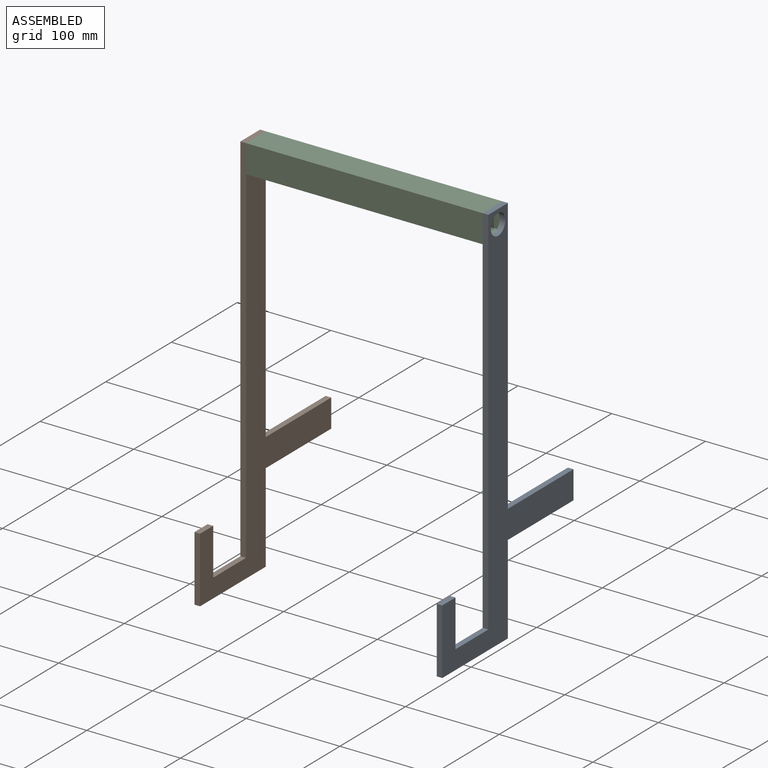
[diagram: assembled view]
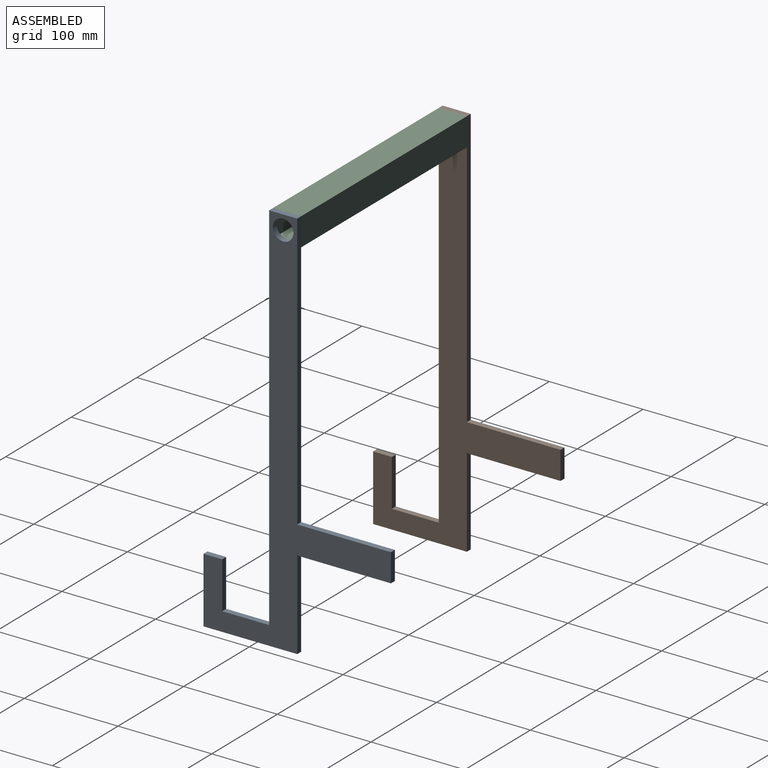
[diagram: assembled view, second angle]
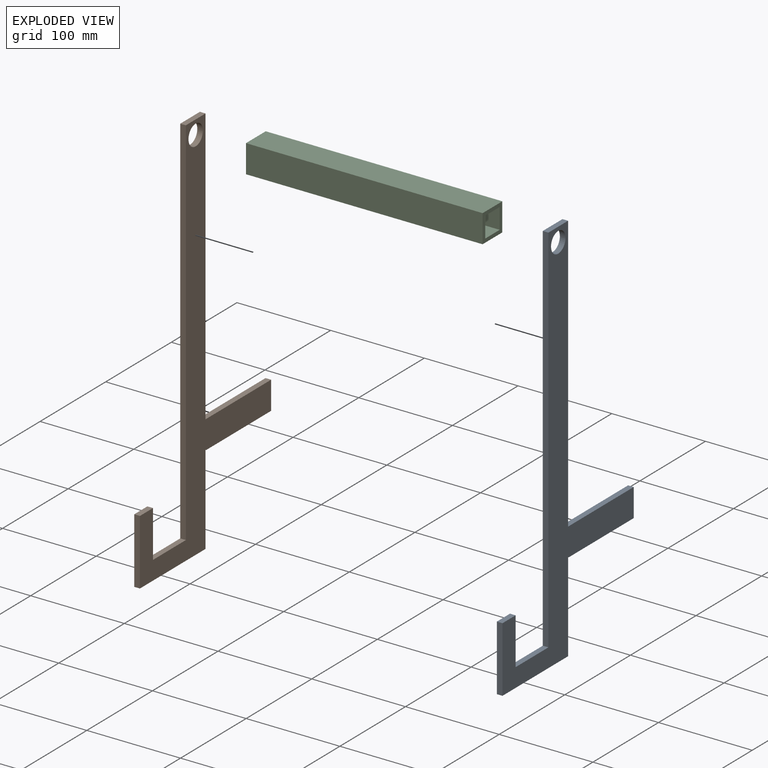
[diagram: exploded view]
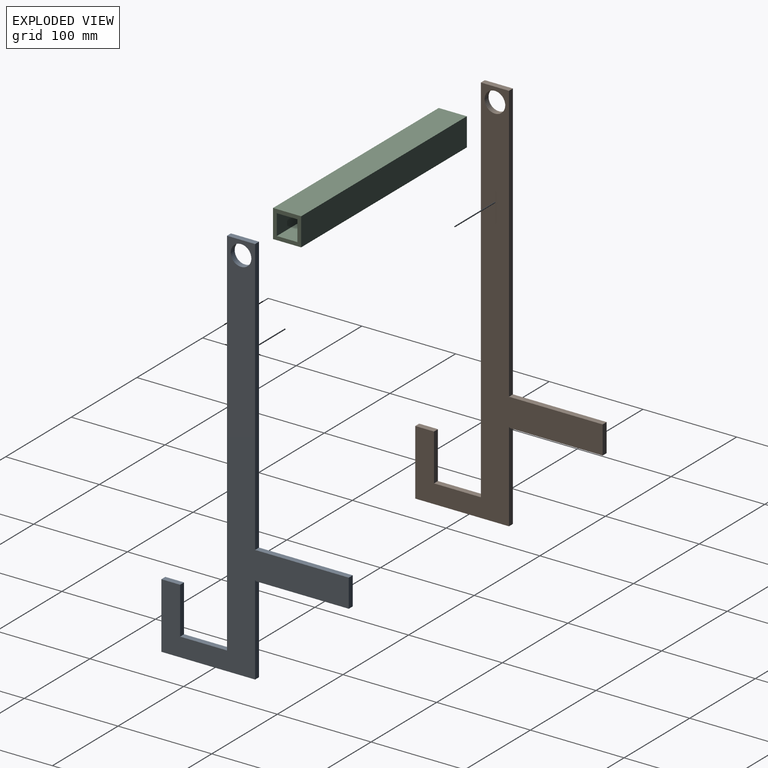
[diagram: exploded view, second angle]
ASSEMBLY  parts=3 mates=2
PART A: 16 faces, bbox 6x200x420 mm
  f0: plane 400x6mm, normal (0,-1,0), area 2400mm2, adj f1,f12,f14,f15
  f1: plane 50x6mm, normal (0,0,1), area 300mm2, adj f0,f2,f14,f15
  f2: plane 50x6mm, normal (0,1,0), area 300mm2, adj f1,f3,f14,f15
  f3: plane 20x6mm, normal (0,0,1), area 120mm2, adj f2,f4,f14,f15
  f4: plane 70x6mm, normal (0,-1,0), area 420mm2, adj f3,f5,f14,f15
  f5: plane 100x6mm, normal (0,0,-1), area 600mm2, adj f4,f6,f14,f15
  f6: plane 95.99x6mm, normal (0,1,0), area 575.9mm2, adj f5,f7,f14,f15
  f7: cylinder r=75mm len=6mm, axis (-1,0,0), area 8mm2, adj f6,f8,f14,f15
  f8: plane 99.1x6mm, normal (0,0,-1), area 594.6mm2, adj f7,f9,f14,f15
  f9: plane 30x6mm, normal (0,1,0), area 180mm2, adj f8,f10,f14,f15
  f10: plane 100x6mm, normal (0,0,1), area 600mm2, adj f9,f11,f14,f15
  f11: plane 295x6mm, normal (0,1,0), area 1770mm2, adj f10,f12,f14,f15
  f12: plane 30x6mm, normal (0,0,1), area 180mm2, adj f0,f11,f14,f15
  f13: cylinder r=11mm len=22mm, axis (-1,0,0), area 414.7mm2, adj f14,f15
  f14: plane 420x200mm, normal (1,0,0), area 17619.4mm2, adj f0,f1,f2,f3,f4,f5,f6,f7
  f15: plane 420x200mm, normal (-1,0,0), area 17619.4mm2, adj f0,f1,f2,f3,f4,f5,f6,f7
PART B: same geometry as A
PART C: 10 faces, bbox 252.5x30x30 mm
  f0: plane 252.5x30mm, normal (0,0,1), area 7575mm2, adj f1,f7,f8,f9
  f1: plane 252.5x30mm, normal (0,-1,0), area 7575mm2, adj f0,f2,f8,f9
  f2: plane 252.5x30mm, normal (0,0,-1), area 7575mm2, adj f1,f7,f8,f9
  f3: plane 252.5x22mm, normal (0,0,-1), area 5555mm2, adj f4,f6,f8,f9
  f4: plane 252.5x22mm, normal (0,-1,0), area 5555mm2, adj f3,f5,f8,f9
  f5: plane 252.5x22mm, normal (0,0,1), area 5555mm2, adj f4,f6,f8,f9
  f6: plane 252.5x22mm, normal (0,1,0), area 5555mm2, adj f3,f5,f8,f9
  f7: plane 252.5x30mm, normal (0,1,0), area 7575mm2, adj f0,f2,f8,f9
  f8: plane 30x30mm, normal (1,0,0), area 416mm2, adj f0,f1,f2,f3,f4,f5,f6,f7
  f9: plane 30x30mm, normal (-1,0,0), area 416mm2, adj f0,f1,f2,f3,f4,f5,f6,f7
PLACE A t=(203.83,-2.15,-363.92)mm
PLACE B t=(-54.67,-2.15,-363.92)mm
PLACE C t=(-56.17,37.85,-3.92)mm
MATE fastened B.f13 <-> C.f9  axis (1,0,0) through (-56.17,37.85,-3.92)mm
MATE fastened A.f13 <-> C.f8  axis (-1,0,0) through (196.33,37.85,-3.92)mm
